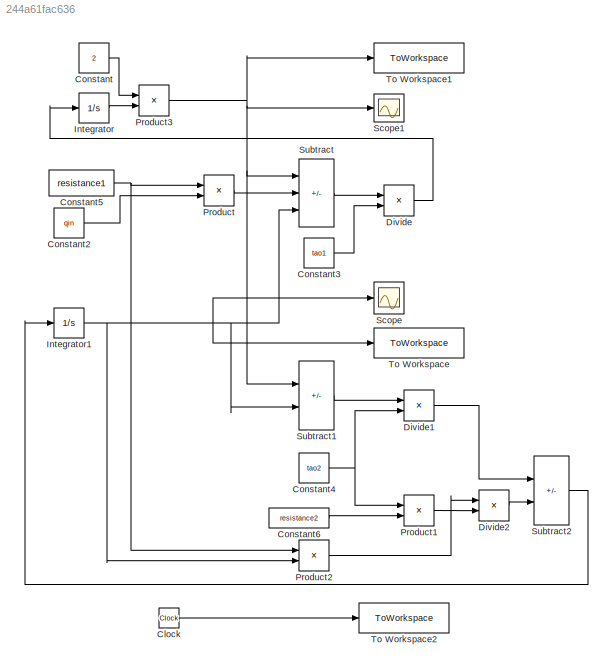
MODEL slx_244a61fac636
KIND model
CONFIG AbsTol = auto
CONFIG EnableMultiTasking = off
CONFIG FixedStep = auto
CONFIG MaxStep = auto
CONFIG MinStep = auto
CONFIG RelTol = 1e-3
CONFIG SampleTimeConstraint = Unconstrained
CONFIG Solver = VariableStepAuto
CONFIG SolverName = VariableStepAuto
CONFIG StartTime = 0.0
CONFIG StopTime = time
BLOCK [Clock] Clock
  Decimation = 7000
BLOCK [Constant] Constant
  Value = 2
BLOCK [Constant] Constant2
  Value = qin
BLOCK [Constant] Constant3
  Value = tao1
BLOCK [Constant] Constant4
  Value = tao2
BLOCK [Constant] Constant5
  Value = resistance1
BLOCK [Constant] Constant6
  Value = resistance2
BLOCK [Product] Divide
  Inputs = */
  Ports = [2, 1]
BLOCK [Product] Divide1
  Inputs = */
  Ports = [2, 1]
BLOCK [Product] Divide2
  Inputs = */
  Ports = [2, 1]
BLOCK [Integrator] Integrator
  Ports = [1, 1]
BLOCK [Integrator] Integrator1
  Ports = [1, 1]
BLOCK [Product] Product
  Ports = [2, 1]
BLOCK [Product] Product1
  Ports = [2, 1]
BLOCK [Product] Product2
  Ports = [2, 1]
BLOCK [Product] Product3
  Ports = [2, 1]
BLOCK [Scope] Scope
  Floating = off
  NumInputPorts = 1
  Ports = [1]
  ScopeSpecificationString = Simulink.scopes.TimeScopeBlockCfg('CurrentConfiguration', extmgr.ConfigurationSet(extmgr.Configuration('Core','General UI',true),extmgr.Configuration('Core','Source UI',true),extmgr.Configuration('Sources','WiredSimulink',true,'DataLoggingVariableName','ScopeData1'),extmgr.Configuration('Visuals','Time Domain',true,'SerializedDisplays',{struct('MinYLimReal','-0.07504','MaxYLimReal','0.67536','YLab...<+1399ch>
BLOCK [Scope] Scope1
  Floating = off
  NumInputPorts = 1
  Ports = [1]
  ScopeSpecificationString = Simulink.scopes.TimeScopeBlockCfg('CurrentConfiguration', extmgr.ConfigurationSet(extmgr.Configuration('Core','General UI',true),extmgr.Configuration('Core','Source UI',true),extmgr.Configuration('Sources','WiredSimulink',true),extmgr.Configuration('Visuals','Time Domain',true,'SerializedDisplays',{struct('MinYLimReal','-0.49983','MaxYLimReal','4.4985','YLabelReal','','MinYLimMag','0.00000','MaxYL...<+1356ch>
BLOCK [Sum] Subtract
  IconShape = rectangular
  Inputs = -++
  Ports = [3, 1]
BLOCK [Sum] Subtract1
  IconShape = rectangular
  Inputs = +-
  Ports = [2, 1]
BLOCK [Sum] Subtract2
  IconShape = rectangular
  Inputs = +-
  Ports = [2, 1]
BLOCK [ToWorkspace] To Workspace
  MaxDataPoints = inf
  Ports = [1]
  SampleTime = -1
  VariableName = data2
BLOCK [ToWorkspace] To Workspace1
  FixptAsFi = on
  MaxDataPoints = inf
  Ports = [1]
  SampleTime = -1
  VariableName = data1
BLOCK [ToWorkspace] To Workspace2
  FixptAsFi = on
  MaxDataPoints = inf
  Ports = [1]
  SampleTime = -1
  VariableName = time
LINE Clock:1 -> To Workspace2:1
LINE Constant2:1 -> Product:2
LINE Constant3:1 -> Divide:2
NET Constant4:1 -> Divide1:2, Product1:1
NET Constant5:1 -> Product2:1, Product:1
LINE Constant6:1 -> Product1:2
LINE Constant:1 -> Product3:1
LINE Divide1:1 -> Subtract2:1
LINE Divide2:1 -> Subtract2:2
LINE Divide:1 -> Integrator:1
NET Integrator1:1 -> Product2:2, Scope:1, Subtract1:2, Subtract:3, To Workspace:1
LINE Integrator:1 -> Product3:2
LINE Product1:1 -> Divide2:2
LINE Product2:1 -> Divide2:1
NET Product3:1 -> Scope1:1, Subtract1:1, Subtract:1, To Workspace1:1
LINE Product:1 -> Subtract:2
LINE Subtract1:1 -> Divide1:1
LINE Subtract2:1 -> Integrator1:1
LINE Subtract:1 -> Divide:1
note: NET lines group one-source signal fan-out (src -> all destinations, sorted); 1:1 wires keep LINE
